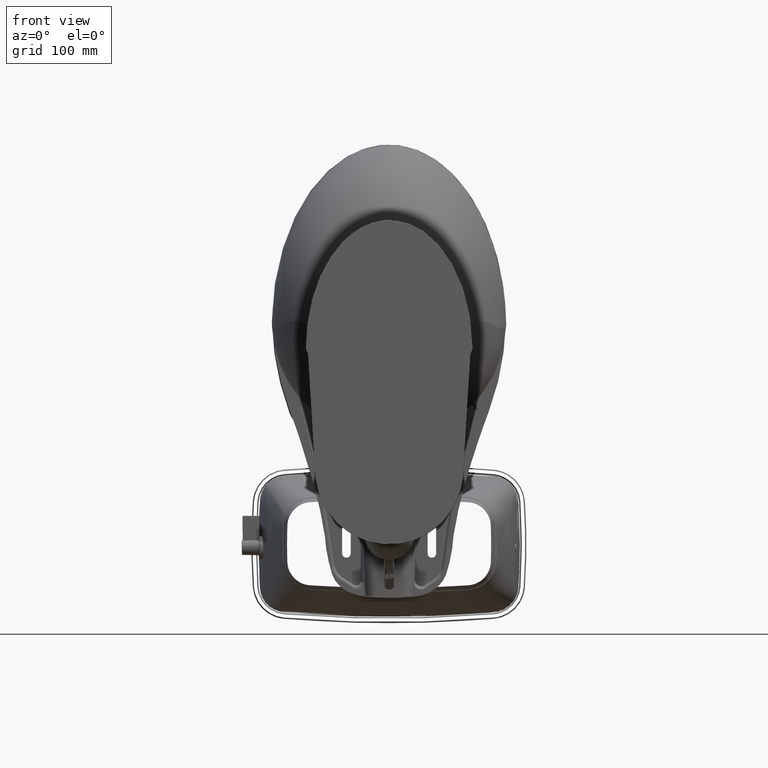
[diagram: clean part render]
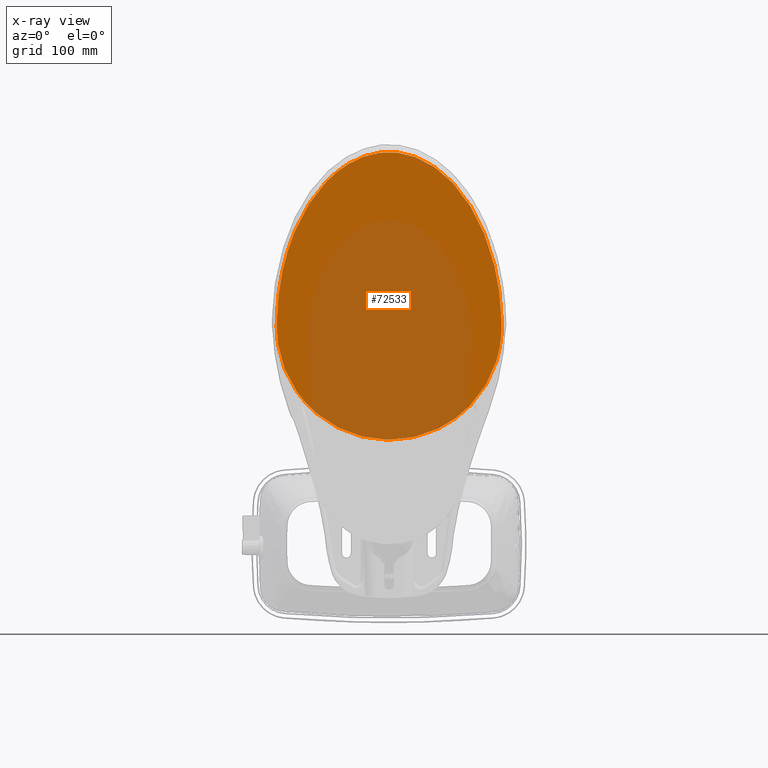
[diagram: x-ray — body ghosted, one internal face saturated and labeled with its STEP entity id]
A machine part, front view, then the same camera in x-ray: the body is ghosted and one INTERNAL B-rep face — a face not visible from any outside direction — is saturated and labeled: STEP entity #72533.
In plain terms, the highlighted planar face has unit normal (-0, -1, 0).
Its self-contained STEP definition (entity closure, byte-faithful):
#542 = B_SPLINE_CURVE_WITH_KNOTS ( 'NONE', 9,
 ( #58294, #28260, #120986, #28916, #60919, #45602, #59604, #167678, #168334, #138269 ),
 .UNSPECIFIED., .F., .F.,
 ( 10, 10 ),
 ( 0.0000000000000000000, 0.08233446762704413300 ),
 .UNSPECIFIED. ) ;
#3721 = CARTESIAN_POINT ( 'NONE',  ( 5.187446509315353900, 2.662306833010669400, 15.80595355146496300 ) ) ;
#5929 = CARTESIAN_POINT ( 'NONE',  ( -7.172997145381893700, -1.625722192477951000, 15.80595355146496800 ) ) ;
#6455 = CARTESIAN_POINT ( 'NONE',  ( 7.207634290016142300, -2.316981591540551400, 15.80595355146496300 ) ) ;
#7912 = CARTESIAN_POINT ( 'NONE',  ( 6.916715797393306900, -5.561956554854331700, 15.80595355146496800 ) ) ;
#8489 = ORIENTED_EDGE ( 'NONE', *, *, #18898, .F. ) ;
#8597 = CARTESIAN_POINT ( 'NONE',  ( -7.199147620543310900, -1.970933585211021000, 15.80595355146496800 ) ) ;
#9120 = CARTESIAN_POINT ( 'NONE',  ( 0.5359086960057888300, -13.78884947925985000, 15.80595355146498300 ) ) ;
#10932 = B_SPLINE_CURVE_WITH_KNOTS ( 'NONE', 9,
 ( #19313, #65321, #50626, #33328, #65981, #109400, #170111, #172070, #81375, #110049 ),
 .UNSPECIFIED., .F., .F.,
 ( 10, 10 ),
 ( 0.0000000000000000000, 0.2743458150765253300 ),
 .UNSPECIFIED. ) ;
#12530 = B_SPLINE_CURVE_WITH_KNOTS ( 'NONE', 9,
 ( #3721, #189242, #21754, #37057, #125830, #35074, #52407, #80510, #83159, #141157 ),
 .UNSPECIFIED., .F., .F.,
 ( 10, 10 ),
 ( 0.0000000000000000000, 0.1282411024586015700 ),
 .UNSPECIFIED. ) ;
#13027 = CARTESIAN_POINT ( 'NONE',  ( -6.829150442590551200, -5.992427197665354500, 15.80595355146496300 ) ) ;
#14848 = CARTESIAN_POINT ( 'NONE',  ( -7.205962956244097700, -2.624473069201179500, 15.80595355146496800 ) ) ;
#17214 = VERTEX_POINT ( 'NONE', #112018 ) ;
#18898 = EDGE_CURVE ( 'NONE', #191591, #169153, #67249, .T. ) ;
#19313 = CARTESIAN_POINT ( 'NONE',  ( -4.661876387614174000, 3.154508725683306600, 15.80595355146496300 ) ) ;
#19855 = CARTESIAN_POINT ( 'NONE',  ( -6.485284361929133800, 0.9314256782778757000, 15.80595355146496800 ) ) ;
#21754 = CARTESIAN_POINT ( 'NONE',  ( 5.936762906737402400, 1.813440879048621200, 15.80595355146496300 ) ) ;
#22314 = CARTESIAN_POINT ( 'NONE',  ( 7.207634290016142300, -2.316981591540551400, 15.80595355146496300 ) ) ;
#22427 = CARTESIAN_POINT ( 'NONE',  ( 6.130083130023625600, -8.365757988051180800, 15.80595355146496800 ) ) ;
#23952 = CARTESIAN_POINT ( 'NONE',  ( -7.206627667590551800, -2.316981591540551400, 15.80595355146496300 ) ) ;
#24296 = CARTESIAN_POINT ( 'NONE',  ( 7.207646393829528500, -2.469564446317716700, 15.80595355146496300 ) ) ;
#26155 = CARTESIAN_POINT ( 'NONE',  ( 7.207634290016142300, -2.316981591540551400, 15.80595355146496300 ) ) ;
#26720 = CARTESIAN_POINT ( 'NONE',  ( -7.128263389787401900, -1.282497846484251800, 15.80595355146496300 ) ) ;
#27684 = CARTESIAN_POINT ( 'NONE',  ( -5.240213622807090100, -10.18500778220472600, 15.80595355146496800 ) ) ;
#28260 = CARTESIAN_POINT ( 'NONE',  ( -6.904246426287404100, -5.647424472251964600, 15.80595355146496300 ) ) ;
#28916 = CARTESIAN_POINT ( 'NONE',  ( -7.029811990700790300, -4.945055284122046800, 15.80595355146496300 ) ) ;
#31315 = ORIENTED_EDGE ( 'NONE', *, *, #51926, .F. ) ;
#31554 = ORIENTED_EDGE ( 'NONE', *, *, #106961, .F. ) ;
#33196 = CARTESIAN_POINT ( 'NONE',  ( -7.128263389787401900, -1.282497846484251800, 15.80595355146496300 ) ) ;
#33328 = CARTESIAN_POINT ( 'NONE',  ( -1.497484932488194000, 4.945270241583664900, 15.80595355146683200 ) ) ;
#33863 = CARTESIAN_POINT ( 'NONE',  ( -6.720898558602361700, 0.3998617967528359000, 15.80595355146496800 ) ) ;
#33974 = FACE_OUTER_BOUND ( 'NONE', #157744, .T. ) ;
#35014 = CARTESIAN_POINT ( 'NONE',  ( 5.187446509315353900, 2.662306833010669400, 15.80595355146496300 ) ) ;
#35074 = CARTESIAN_POINT ( 'NONE',  ( 6.758531350032284600, 0.3183895489615344300, 15.80595355146496300 ) ) ;
#36422 = CARTESIAN_POINT ( 'NONE',  ( 6.370349399335043300, -7.701052364692913900, 15.80595355146496800 ) ) ;
#36817 = ORIENTED_EDGE ( 'NONE', *, *, #40325, .F. ) ;
#37057 = CARTESIAN_POINT ( 'NONE',  ( 6.254037970192913900, 1.340632738555313400, 15.80595355146496300 ) ) ;
#37278 = CARTESIAN_POINT ( 'NONE',  ( -7.206210777098428700, -2.201610502975589200, 15.80595355146496800 ) ) ;
#37733 = CARTESIAN_POINT ( 'NONE',  ( 4.864823852877954400, -10.68873718046850200, 15.80595355146496800 ) ) ;
#39779 = CARTESIAN_POINT ( 'NONE',  ( -0.4423263433295271900, -13.80168699672835500, 15.80595355146498300 ) ) ;
#40325 = EDGE_CURVE ( 'NONE', #169153, #194302, #55695, .T. ) ;
#40439 = CARTESIAN_POINT ( 'NONE',  ( -3.211331981019686800, -12.52145943824804100, 15.80595355146498300 ) ) ;
#41644 = CARTESIAN_POINT ( 'NONE',  ( 7.194156379447639100, -1.901579774707874000, 15.80595355146496300 ) ) ;
#41679 = VERTEX_POINT ( 'NONE', #184451 ) ;
#43935 = CARTESIAN_POINT ( 'NONE',  ( -4.004238197440945300, -11.70265208248425300, 15.80595355146496300 ) ) ;
#45532 = CARTESIAN_POINT ( 'NONE',  ( -7.207088479515751300, -2.419481323996455700, 15.80595355146496800 ) ) ;
#45602 = CARTESIAN_POINT ( 'NONE',  ( -7.121856416023626400, -4.229781377846455500, 15.80595355146496300 ) ) ;
#46173 = VERTEX_POINT ( 'NONE', #122577 ) ;
#48414 = EDGE_CURVE ( 'NONE', #194302, #53660, #90937, .T. ) ;
#48540 = CARTESIAN_POINT ( 'NONE',  ( -4.661876387614174000, 3.154508725683306600, 15.80595355146496300 ) ) ;
#49188 = CARTESIAN_POINT ( 'NONE',  ( 7.199479005711811700, -1.993799725605512000, 15.80595355146496300 ) ) ;
#49373 = B_SPLINE_CURVE_WITH_KNOTS ( 'NONE', 9,
 ( #23952, #37278, #129991, #8597, #146020, #144030, #5929, #145350, #69318, #131305 ),
 .UNSPECIFIED., .F., .F.,
 ( 10, 10 ),
 ( 0.0000000000000000000, 0.02637678489940523800 ),
 .UNSPECIFIED. ) ;
#50497 = CARTESIAN_POINT ( 'NONE',  ( 7.203472336326772300, -2.086090263053936900, 15.80595355146496300 ) ) ;
#50626 = CARTESIAN_POINT ( 'NONE',  ( -2.674446347878374700, 4.542835712629338800, 15.80595355146446900 ) ) ;
#51926 = EDGE_CURVE ( 'NONE', #109423, #191591, #115384, .T. ) ;
#52407 = CARTESIAN_POINT ( 'NONE',  ( 6.941111860036221200, -0.2219884310723630500, 15.80595355146496300 ) ) ;
#52423 = CARTESIAN_POINT ( 'NONE',  ( 5.857517065668506700, -9.001030153787398900, 15.80595355146496800 ) ) ;
#52463 = EDGE_CURVE ( 'NONE', #46173, #134082, #171585, .T. ) ;
#53082 = CARTESIAN_POINT ( 'NONE',  ( 4.080346422980708700, -11.59655692937401600, 15.80595355146496300 ) ) ;
#53468 = AXIS2_PLACEMENT_3D ( 'NONE', #26155, #178298, #162934 ) ;
#53624 = CARTESIAN_POINT ( 'NONE',  ( 7.207810374061811100, -2.418702584404330800, 15.80595355146496300 ) ) ;
#53660 = VERTEX_POINT ( 'NONE', #93912 ) ;
#53739 = CARTESIAN_POINT ( 'NONE',  ( 6.748491162299607100, -6.301677979822834200, 15.80595355146496300 ) ) ;
#55123 = CARTESIAN_POINT ( 'NONE',  ( -1.408964725481497000, -13.58861907459843200, 15.80595355146498300 ) ) ;
#55241 = CARTESIAN_POINT ( 'NONE',  ( 7.169146232816536300, -3.641436296477952500, 15.80595355146496800 ) ) ;
#55695 = B_SPLINE_CURVE_WITH_KNOTS ( 'NONE', 3,
 ( #186805, #125383, #126037, #158719 ),
 .UNSPECIFIED., .F., .F.,
 ( 4, 4 ),
 ( 0.0000000000000000000, 1.000000000000000000 ),
 .UNSPECIFIED. ) ;
#55774 = CARTESIAN_POINT ( 'NONE',  ( -2.339547432175592200, -13.15702705588977200, 15.80595355146498300 ) ) ;
#55888 = CARTESIAN_POINT ( 'NONE',  ( 6.748491162299607100, -6.301677979822834200, 15.80595355146496300 ) ) ;
#58029 = VERTEX_POINT ( 'NONE', #26720 ) ;
#58227 = CARTESIAN_POINT ( 'NONE',  ( -7.203327857039370800, -2.778160998851575400, 15.80595355146496300 ) ) ;
#58294 = CARTESIAN_POINT ( 'NONE',  ( -6.829150442590551200, -5.992427197665354500, 15.80595355146496300 ) ) ;
#59604 = CARTESIAN_POINT ( 'NONE',  ( -7.155114982507877900, -3.868675054805117000, 15.80595355146496300 ) ) ;
#60919 = CARTESIAN_POINT ( 'NONE',  ( -7.080067313440948400, -4.588758950311022200, 15.80595355146496300 ) ) ;
#62048 = B_SPLINE_CURVE_WITH_KNOTS ( 'NONE', 9,
 ( #33196, #157253, #93925, #33863, #19855, #111913, #111251, #139901, #171282, #48540 ),
 .UNSPECIFIED., .F., .F.,
 ( 10, 10 ),
 ( 0.0000000000000000000, 0.1310652716025941500 ),
 .UNSPECIFIED. ) ;
#62164 = CARTESIAN_POINT ( 'NONE',  ( -7.206943367669294900, -2.368230479596062500, 15.80595355146496800 ) ) ;
#63492 = CARTESIAN_POINT ( 'NONE',  ( -7.206627667590551800, -2.316981591540551400, 15.80595355146496300 ) ) ;
#65321 = CARTESIAN_POINT ( 'NONE',  ( -3.741680858375246100, 3.935361158024977400, 15.80595355146525800 ) ) ;
#65981 = CARTESIAN_POINT ( 'NONE',  ( -0.2560582207339574500, 5.120376893599804200, 15.80595355146289400 ) ) ;
#66381 = CARTESIAN_POINT ( 'NONE',  ( -7.206627667590551800, -2.316981591540551400, 15.80595355146496300 ) ) ;
#66471 = CARTESIAN_POINT ( 'NONE',  ( 7.200982775324015400, -2.859068897830709100, 15.80595355146496300 ) ) ;
#67249 = B_SPLINE_CURVE_WITH_KNOTS ( 'NONE', 9,
 ( #22314, #129010, #53624, #24296, #144369, #175759, #145699, #161051, #69662, #176405 ),
 .UNSPECIFIED., .F., .F.,
 ( 10, 10 ),
 ( 0.0000000000000000000, 0.01162594104498533900 ),
 .UNSPECIFIED. ) ;
#68445 = CARTESIAN_POINT ( 'NONE',  ( 4.483132795101970400, -11.16642329567716500, 15.80595355146496800 ) ) ;
#68622 = CARTESIAN_POINT ( 'NONE',  ( 7.097560882931496500, -4.418476775791338800, 15.80595355146496800 ) ) ;
#69318 = CARTESIAN_POINT ( 'NONE',  ( -7.145230668543311100, -1.396614491486611700, 15.80595355146496800 ) ) ;
#69662 = CARTESIAN_POINT ( 'NONE',  ( 7.204306533852363100, -2.723826435783858200, 15.80595355146496300 ) ) ;
#72134 = ORIENTED_EDGE ( 'NONE', *, *, #195970, .F. ) ;
#72533 = ADVANCED_FACE ( 'NONE', ( #33974 ), #83650, .F. ) ;
#77544 = CARTESIAN_POINT ( 'NONE',  ( 7.203134721981101900, -2.774658701191732300, 15.80595355146496300 ) ) ;
#80510 = CARTESIAN_POINT ( 'NONE',  ( 7.075077496395668900, -0.7754429394035442500, 15.80595355146496300 ) ) ;
#81375 = CARTESIAN_POINT ( 'NONE',  ( 4.349637625211132200, 3.531012319681984900, 15.80595355146486400 ) ) ;
#83159 = CARTESIAN_POINT ( 'NONE',  ( 7.159528474054725100, -1.336982592672835400, 15.80595355146496300 ) ) ;
#83221 = CARTESIAN_POINT ( 'NONE',  ( 7.207634290016142300, -2.316981591540551400, 15.80595355146496300 ) ) ;
#83650 = PLANE ( 'NONE',  #53468 ) ;
#84033 = CARTESIAN_POINT ( 'NONE',  ( 7.138303569615354500, -4.030970055751968300, 15.80595355146496800 ) ) ;
#85320 = CARTESIAN_POINT ( 'NONE',  ( 6.986665422684645000, -5.184650802031495900, 15.80595355146496800 ) ) ;
#87817 = CARTESIAN_POINT ( 'NONE',  ( -4.004238197440945300, -11.70265208248425300, 15.80595355146496300 ) ) ;
#89840 = ORIENTED_EDGE ( 'NONE', *, *, #151789, .F. ) ;
#90937 = B_SPLINE_CURVE_WITH_KNOTS ( 'NONE', 9,
 ( #130195, #175403, #55241, #84033, #68622, #131280, #85320, #7912, #98658, #55888 ),
 .UNSPECIFIED., .F., .F.,
 ( 10, 10 ),
 ( 0.0000000000000000000, 0.08837462339639212700 ),
 .UNSPECIFIED. ) ;
#93912 = CARTESIAN_POINT ( 'NONE',  ( 6.748491162299607100, -6.301677979822834200, 15.80595355146496300 ) ) ;
#93925 = CARTESIAN_POINT ( 'NONE',  ( -6.907438493622048100, -0.1497815766090539500, 15.80595355146496800 ) ) ;
#95908 = ORIENTED_EDGE ( 'NONE', *, *, #120957, .F. ) ;
#96557 = CARTESIAN_POINT ( 'NONE',  ( 7.204970178311811000, -2.132255154762204600, 15.80595355146496300 ) ) ;
#97209 = CARTESIAN_POINT ( 'NONE',  ( 7.194156379447639100, -1.901579774707874000, 15.80595355146496300 ) ) ;
#98488 = ORIENTED_EDGE ( 'NONE', *, *, #48414, .F. ) ;
#98658 = CARTESIAN_POINT ( 'NONE',  ( 6.837271734205119200, -5.934516657381889700, 15.80595355146496800 ) ) ;
#100524 = CARTESIAN_POINT ( 'NONE',  ( 1.500708658543427700, -13.55043501720079600, 15.80595355146498300 ) ) ;
#103419 = EDGE_CURVE ( 'NONE', #41679, #126052, #542, .T. ) ;
#103766 = CARTESIAN_POINT ( 'NONE',  ( -4.854432452181106000, -10.74425382505905600, 15.80595355146496800 ) ) ;
#106961 = EDGE_CURVE ( 'NONE', #135144, #58029, #49373, .T. ) ;
#109400 = CARTESIAN_POINT ( 'NONE',  ( 0.9994469210509884200, 5.057635321057676800, 15.80595355146801100 ) ) ;
#109423 = VERTEX_POINT ( 'NONE', #41644 ) ;
#110049 = CARTESIAN_POINT ( 'NONE',  ( 5.187446509315353900, 2.662306833010669400, 15.80595355146496300 ) ) ;
#111251 = CARTESIAN_POINT ( 'NONE',  ( -5.875561879637796600, 1.920614378141182900, 15.80595355146496800 ) ) ;
#111913 = CARTESIAN_POINT ( 'NONE',  ( -6.202630917086613800, 1.439916515813151300, 15.80595355146496800 ) ) ;
#112018 = CARTESIAN_POINT ( 'NONE',  ( -4.661876387614174000, 3.154508725683306600, 15.80595355146496300 ) ) ;
#113807 = ORIENTED_EDGE ( 'NONE', *, *, #178891, .F. ) ;
#115384 = B_SPLINE_CURVE_WITH_KNOTS ( 'NONE', 9,
 ( #97209, #173284, #49188, #127891, #50497, #96557, #189332, #188655, #157261, #6455 ),
 .UNSPECIFIED., .F., .F.,
 ( 10, 10 ),
 ( 0.0000000000000000000, 0.01055840262645985200 ),
 .UNSPECIFIED. ) ;
#120957 = EDGE_CURVE ( 'NONE', #126052, #135144, #129868, .T. ) ;
#120986 = CARTESIAN_POINT ( 'NONE',  ( -6.971172111086618300, -5.298123616980311600, 15.80595355146496300 ) ) ;
#121581 = CARTESIAN_POINT ( 'NONE',  ( -7.206500224188980400, -2.573229996989368800, 15.80595355146496800 ) ) ;
#121731 = CARTESIAN_POINT ( 'NONE',  ( -5.595545450799215300, -9.577599434212603000, 15.80595355146496800 ) ) ;
#122577 = CARTESIAN_POINT ( 'NONE',  ( 4.080346422980708700, -11.59655692937401600, 15.80595355146496300 ) ) ;
#124136 = EDGE_CURVE ( 'NONE', #53660, #46173, #137067, .T. ) ;
#125383 = CARTESIAN_POINT ( 'NONE',  ( 7.202486007745561000, -2.802799407872465400, 15.80595355146496300 ) ) ;
#125830 = CARTESIAN_POINT ( 'NONE',  ( 6.528822424475591500, 0.8408195746589756100, 15.80595355146496300 ) ) ;
#126037 = CARTESIAN_POINT ( 'NONE',  ( 7.201768692193199200, -2.830936140085457400, 15.80595355146496300 ) ) ;
#126052 = VERTEX_POINT ( 'NONE', #126110 ) ;
#126110 = CARTESIAN_POINT ( 'NONE',  ( -7.203327857039370800, -2.778160998851575400, 15.80595355146496300 ) ) ;
#127891 = CARTESIAN_POINT ( 'NONE',  ( 7.201641907048031800, -2.039937540191732300, 15.80595355146496300 ) ) ;
#129010 = CARTESIAN_POINT ( 'NONE',  ( 7.207806337738976900, -2.367841124608267600, 15.80595355146496300 ) ) ;
#129129 = CARTESIAN_POINT ( 'NONE',  ( 5.222741987759056000, -10.16635802426377900, 15.80595355146496800 ) ) ;
#129868 = B_SPLINE_CURVE_WITH_KNOTS ( 'NONE', 9,
 ( #58227, #150276, #154206, #14848, #121581, #136885, #169590, #45532, #62164, #63492 ),
 .UNSPECIFIED., .F., .F.,
 ( 10, 10 ),
 ( 0.0000000000000000000, 0.01171464620435643800 ),
 .UNSPECIFIED. ) ;
#129991 = CARTESIAN_POINT ( 'NONE',  ( -7.203717377118114700, -2.086246921536218000, 15.80595355146496800 ) ) ;
#130195 = CARTESIAN_POINT ( 'NONE',  ( 7.200982775324015400, -2.859068897830709100, 15.80595355146496300 ) ) ;
#131142 = ORIENTED_EDGE ( 'NONE', *, *, #124136, .F. ) ;
#131280 = CARTESIAN_POINT ( 'NONE',  ( 7.046984823225985300, -4.803265349681102400, 15.80595355146496800 ) ) ;
#131305 = CARTESIAN_POINT ( 'NONE',  ( -7.128263389787401900, -1.282497846484251800, 15.80595355146496300 ) ) ;
#134082 = VERTEX_POINT ( 'NONE', #43935 ) ;
#134400 = CARTESIAN_POINT ( 'NONE',  ( -5.917604710598428900, -8.926594857751968700, 15.80595355146496800 ) ) ;
#135144 = VERTEX_POINT ( 'NONE', #66381 ) ;
#136885 = CARTESIAN_POINT ( 'NONE',  ( -7.206866907000002900, -2.521982642379132500, 15.80595355146496800 ) ) ;
#137067 = B_SPLINE_CURVE_WITH_KNOTS ( 'NONE', 9,
 ( #53739, #143820, #36422, #22427, #52423, #158526, #129129, #37733, #68445, #53082 ),
 .UNSPECIFIED., .F., .F.,
 ( 10, 10 ),
 ( 0.0000000000000000000, 0.1520383070361230600 ),
 .UNSPECIFIED. ) ;
#138269 = CARTESIAN_POINT ( 'NONE',  ( -7.203327857039370800, -2.778160998851575400, 15.80595355146496300 ) ) ;
#139901 = CARTESIAN_POINT ( 'NONE',  ( -5.507243882488190000, 2.369155105444490200, 15.80595355146496800 ) ) ;
#141157 = CARTESIAN_POINT ( 'NONE',  ( 7.194156379447639100, -1.901579774707874000, 15.80595355146496300 ) ) ;
#143820 = CARTESIAN_POINT ( 'NONE',  ( 6.576865723044099000, -7.011452898917319500, 15.80595355146496800 ) ) ;
#144030 = CARTESIAN_POINT ( 'NONE',  ( -7.183784786476382000, -1.740628551207872300, 15.80595355146496800 ) ) ;
#144369 = CARTESIAN_POINT ( 'NONE',  ( 7.207314398600787300, -2.520425185873622600, 15.80595355146496300 ) ) ;
#145350 = CARTESIAN_POINT ( 'NONE',  ( -7.160144016031499500, -1.511036697838186600, 15.80595355146496800 ) ) ;
#145699 = CARTESIAN_POINT ( 'NONE',  ( 7.206146402953542900, -2.622137200692126400, 15.80595355146496300 ) ) ;
#145883 = CARTESIAN_POINT ( 'NONE',  ( 4.080346422980708700, -11.59655692937401600, 15.80595355146496300 ) ) ;
#146020 = CARTESIAN_POINT ( 'NONE',  ( -7.192502688169295100, -1.855713228150392300, 15.80595355146496800 ) ) ;
#149114 = CARTESIAN_POINT ( 'NONE',  ( -4.441319507799214300, -11.25129303827953300, 15.80595355146496800 ) ) ;
#150276 = CARTESIAN_POINT ( 'NONE',  ( -7.204376744208665300, -2.726940129249604700, 15.80595355146496800 ) ) ;
#150851 = EDGE_CURVE ( 'NONE', #58029, #17214, #62048, .T. ) ;
#151789 = EDGE_CURVE ( 'NONE', #134082, #41679, #168623, .T. ) ;
#154206 = CARTESIAN_POINT ( 'NONE',  ( -7.205255121251972200, -2.675710299684250800, 15.80595355146496800 ) ) ;
#157253 = CARTESIAN_POINT ( 'NONE',  ( -7.043488115555119200, -0.7123256924370067200, 15.80595355146496800 ) ) ;
#157261 = CARTESIAN_POINT ( 'NONE',  ( 7.207467423038189700, -2.270795435842520000, 15.80595355146496300 ) ) ;
#157744 = EDGE_LOOP ( 'NONE', ( #72134, #185816, #31554, #95908, #169792, #89840, #169710, #131142, #98488, #36817, #8489, #31315, #113807 ) ) ;
#158526 = CARTESIAN_POINT ( 'NONE',  ( 5.554396526859842500, -9.602566695814960700, 15.80595355146496800 ) ) ;
#158719 = CARTESIAN_POINT ( 'NONE',  ( 7.200982775324015400, -2.859068897830709100, 15.80595355146496300 ) ) ;
#161051 = CARTESIAN_POINT ( 'NONE',  ( 7.205310439218110700, -2.672985427686220800, 15.80595355146496300 ) ) ;
#162934 = DIRECTION ( 'NONE',  ( 0.0000000000000000000, 1.000000000000000000, -1.506119745820000000E-016 ) ) ;
#164468 = CARTESIAN_POINT ( 'NONE',  ( -6.452334612440948200, -7.514284223452756700, 15.80595355146496800 ) ) ;
#165137 = CARTESIAN_POINT ( 'NONE',  ( -6.203905382909452400, -8.237019245822837700, 15.80595355146496800 ) ) ;
#165798 = CARTESIAN_POINT ( 'NONE',  ( -6.661180496763782900, -6.764107469314957700, 15.80595355146496800 ) ) ;
#167678 = CARTESIAN_POINT ( 'NONE',  ( -7.179796228342524100, -3.505996613966140300, 15.80595355146496300 ) ) ;
#168334 = CARTESIAN_POINT ( 'NONE',  ( -7.195871009551184200, -3.142305230568896300, 15.80595355146496300 ) ) ;
#168623 = B_SPLINE_CURVE_WITH_KNOTS ( 'NONE', 9,
 ( #195185, #149114, #103766, #27684, #121731, #134400, #165137, #164468, #165798, #13027 ),
 .UNSPECIFIED., .F., .F.,
 ( 10, 10 ),
 ( 0.0000000000000000000, 0.1638414682774901900 ),
 .UNSPECIFIED. ) ;
#169153 = VERTEX_POINT ( 'NONE', #77544 ) ;
#169590 = CARTESIAN_POINT ( 'NONE',  ( -7.207062993519688400, -2.470732564843305400, 15.80595355146496800 ) ) ;
#169710 = ORIENTED_EDGE ( 'NONE', *, *, #52463, .F. ) ;
#169792 = ORIENTED_EDGE ( 'NONE', *, *, #103419, .F. ) ;
#170111 = CARTESIAN_POINT ( 'NONE',  ( 2.217244377748256200, 4.759633440312010900, 15.80595355146289400 ) ) ;
#171282 = CARTESIAN_POINT ( 'NONE',  ( -5.101327446618110000, 2.781602731887127700, 15.80595355146496800 ) ) ;
#171585 = B_SPLINE_CURVE_WITH_KNOTS ( 'NONE', 9,
 ( #145883, #175285, #176590, #100524, #9120, #39779, #55123, #55774, #40439, #87817 ),
 .UNSPECIFIED., .F., .F.,
 ( 10, 10 ),
 ( 0.0000000000000000000, 0.2319167052217922200 ),
 .UNSPECIFIED. ) ;
#172070 = CARTESIAN_POINT ( 'NONE',  ( 3.348246431876230400, 4.241862659334457500, 15.80595355146643600 ) ) ;
#173284 = CARTESIAN_POINT ( 'NONE',  ( 7.196983773881496100, -1.947679557870866100, 15.80595355146496300 ) ) ;
#175285 = CARTESIAN_POINT ( 'NONE',  ( 3.294192893394097600, -12.43608651062992900, 15.80595355146498300 ) ) ;
#175403 = CARTESIAN_POINT ( 'NONE',  ( 7.190045786312992100, -3.250570434467716700, 15.80595355146496800 ) ) ;
#175759 = CARTESIAN_POINT ( 'NONE',  ( 7.206814396647244400, -2.571283278732677600, 15.80595355146496300 ) ) ;
#176405 = CARTESIAN_POINT ( 'NONE',  ( 7.203134721981101900, -2.774658701191732300, 15.80595355146496300 ) ) ;
#176590 = CARTESIAN_POINT ( 'NONE',  ( 2.427677249800829900, -13.09446608877953400, 15.80595355146498300 ) ) ;
#178298 = DIRECTION ( 'NONE',  ( -8.537062396659998500E-017, -1.506119745820000000E-016, -1.000000000000000000 ) ) ;
#178891 = EDGE_CURVE ( 'NONE', #187936, #109423, #12530, .T. ) ;
#184451 = CARTESIAN_POINT ( 'NONE',  ( -6.829150442590551200, -5.992427197665354500, 15.80595355146496300 ) ) ;
#185816 = ORIENTED_EDGE ( 'NONE', *, *, #150851, .F. ) ;
#186805 = CARTESIAN_POINT ( 'NONE',  ( 7.203134721981101900, -2.774658701191732300, 15.80595355146496300 ) ) ;
#187936 = VERTEX_POINT ( 'NONE', #35014 ) ;
#188655 = CARTESIAN_POINT ( 'NONE',  ( 7.206967771087008100, -2.224610482723228300, 15.80595355146496300 ) ) ;
#189242 = CARTESIAN_POINT ( 'NONE',  ( 5.580067032820075200, 2.255207303011062400, 15.80595355146496300 ) ) ;
#189332 = CARTESIAN_POINT ( 'NONE',  ( 7.206135344092913000, -2.178429475031889800, 15.80595355146496300 ) ) ;
#191591 = VERTEX_POINT ( 'NONE', #83221 ) ;
#194302 = VERTEX_POINT ( 'NONE', #66471 ) ;
#195185 = CARTESIAN_POINT ( 'NONE',  ( -4.004238197440945300, -11.70265208248425300, 15.80595355146496300 ) ) ;
#195970 = EDGE_CURVE ( 'NONE', #17214, #187936, #10932, .T. ) ;